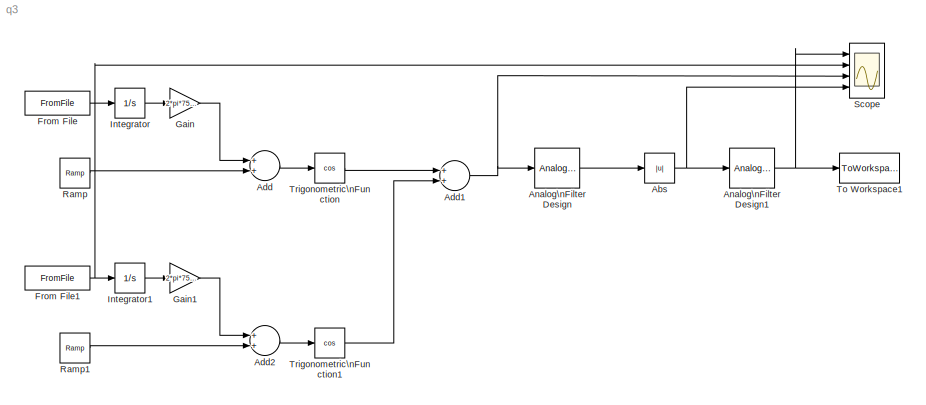
MODEL q3
KIND model
BLOCK [Abs] Abs
  SID = 22
  SaturateOnIntegerOverflow = off
BLOCK [Sum] Add
  InputSameDT = off
  OutDataTypeStr = Inherit: Inherit via internal rule
  Ports = [2, 1]
  SID = 9
  SaturateOnIntegerOverflow = off
BLOCK [Sum] Add1
  InputSameDT = off
  OutDataTypeStr = Inherit: Inherit via internal rule
  Ports = [2, 1]
  SID = 41
  SaturateOnIntegerOverflow = off
BLOCK [Sum] Add2
  InputSameDT = off
  OutDataTypeStr = Inherit: Inherit via internal rule
  Ports = [2, 1]
  SID = 42
  SaturateOnIntegerOverflow = off
BLOCK [Reference] Analog\nFilter Design  REF=dsparch4/Analog\nFilter Design
  N = 8
  Ports = [1, 1]
  Rp = 2
  Rs = 40
  SID = 20
  SourceBlock = dsparch4/Analog\nFilter Design
  SourceProductBaseCode = DS
  SourceProductName = DSP System Toolbox
  SourceType = Analog Filter Design
  Whi = 2*pi*(1150e3 + 50e3)
  Wlo = 2*pi*(1150e3 - 50e3)
  filttype = Bandpass
  method = Butterworth
BLOCK [Reference] Analog\nFilter Design1  REF=dsparch4/Analog\nFilter Design
  N = 8
  Ports = [1, 1]
  Rp = 2
  Rs = 40
  SID = 23
  SourceBlock = dsparch4/Analog\nFilter Design
  SourceProductBaseCode = DS
  SourceProductName = DSP System Toolbox
  SourceType = Analog Filter Design
  Whi = 80
  Wlo = 2*pi*200e3
  filttype = Lowpass
  method = Butterworth
BLOCK [FromFile] From File
  ExtrapolationBeforeFirstDataPoint = Ground value
  FileName = mario_dados.mat
  SID = 36
  SampleTime = 0
BLOCK [FromFile] From File1
  ExtrapolationBeforeFirstDataPoint = Ground value
  FileName = zelda_dados.mat
  SID = 37
  SampleTime = 0
BLOCK [Gain] Gain
  Gain = 2*pi*75e3
  OutDataTypeStr = Inherit: Inherit via internal rule
  ParamDataTypeStr = Inherit: Inherit via internal rule
  SID = 15
  SaturateOnIntegerOverflow = off
BLOCK [Gain] Gain1
  Gain = 2*pi*75e3
  OutDataTypeStr = Inherit: Inherit via internal rule
  ParamDataTypeStr = Inherit: Inherit via internal rule
  SID = 44
  SaturateOnIntegerOverflow = off
BLOCK [Integrator] Integrator
  Ports = [1, 1]
  SID = 14
BLOCK [Integrator] Integrator1
  Ports = [1, 1]
  SID = 45
BLOCK [Reference] Ramp  REF=simulink/Sources/Ramp
  InitialOutput = 0
  Ports = [0, 1]
  SID = 10
  SourceBlock = simulink/Sources/Ramp
  SourceProductBaseCode = SL
  SourceProductName = Simulink
  SourceType = Ramp
  VectorParams1D = on
  slope = 2*pi*(950e3)
  start = 0
BLOCK [Reference] Ramp1  REF=simulink/Sources/Ramp
  InitialOutput = 0
  Ports = [0, 1]
  SID = 46
  SourceBlock = simulink/Sources/Ramp
  SourceProductBaseCode = SL
  SourceProductName = Simulink
  SourceType = Ramp
  VectorParams1D = on
  slope = 2*pi*(1050e3)
  start = 0
BLOCK [Scope] Scope
  Floating = off
  NumInputPorts = 4
  Ports = [4]
  SID = 3
  ScopeSpecificationString = Simulink.scopes.TimeScopeBlockCfg('CurrentConfiguration', extmgr.ConfigurationSet(extmgr.Configuration('Core','General UI',true),extmgr.Configuration('Core','Source UI',true),extmgr.Configuration('Sources','WiredSimulink',true),extmgr.Configuration('Visuals','Time Domain',true,'SerializedDisplays',{struct('MinYLimReal','-0.000015','MaxYLimReal','0.000032','YLabelReal','','MinYLimMag','0.000000','M...<+3467ch>
BLOCK [ToWorkspace] To Workspace1
  FixptAsFi = on
  MaxDataPoints = inf
  Ports = [1]
  SID = 39
  SampleTime = 1e-5
  SaveFormat = Timeseries
  VariableName = receive_mario
BLOCK [Trigonometry] Trigonometric\nFunction
  Operator = cos
  Ports = [1, 1]
  SID = 11
BLOCK [Trigonometry] Trigonometric\nFunction1
  Operator = cos
  Ports = [1, 1]
  SID = 47
NET Abs:1 -> Analog\nFilter Design1:1, Scope:4
NET Add1:1 -> Analog\nFilter Design:1, Scope:3
LINE Add2:1 -> Trigonometric\nFunction1:1
LINE Add:1 -> Trigonometric\nFunction:1
NET Analog\nFilter Design1:1 -> Scope:1, To Workspace1:1
LINE Analog\nFilter Design:1 -> Abs:1
NET From File1:1 -> Integrator1:1, Scope:2
LINE From File:1 -> Integrator:1
LINE Gain1:1 -> Add2:1
LINE Gain:1 -> Add:1
LINE Integrator1:1 -> Gain1:1
LINE Integrator:1 -> Gain:1
LINE Ramp1:1 -> Add2:2
LINE Ramp:1 -> Add:2
LINE Trigonometric\nFunction1:1 -> Add1:2
LINE Trigonometric\nFunction:1 -> Add1:1
note: NET lines group one-source signal fan-out (src -> all destinations, sorted); 1:1 wires keep LINE
